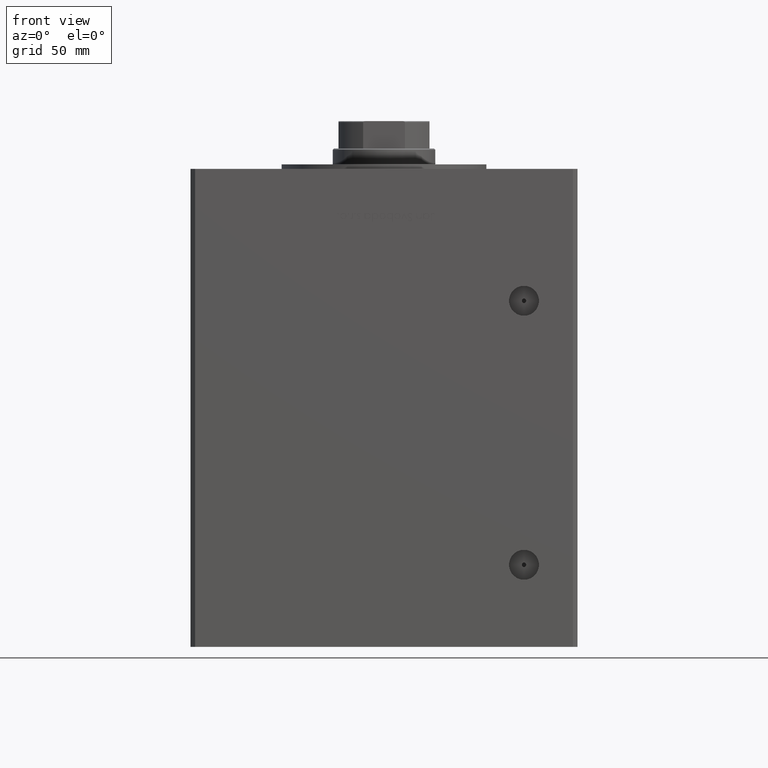
[diagram: clean part render]
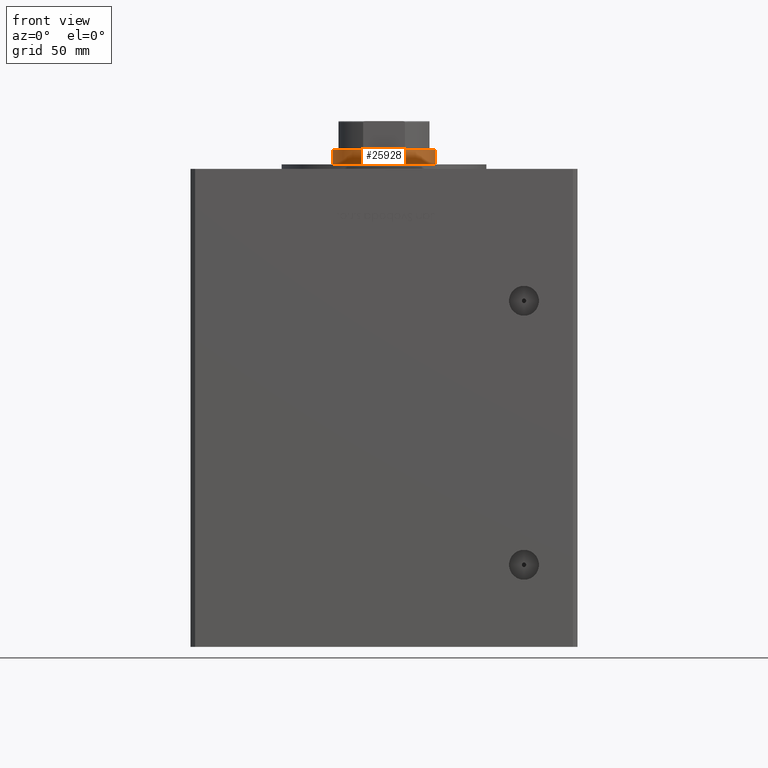
[diagram: same view with one face highlighted and labeled with its STEP entity id]
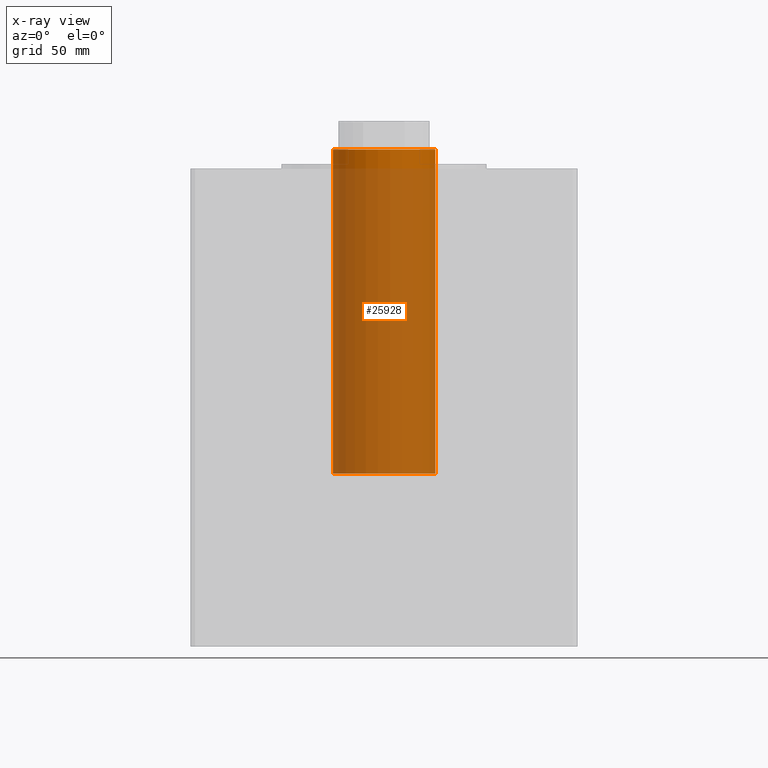
[diagram: x-ray of the same camera — body ghosted, the highlighted face saturated]
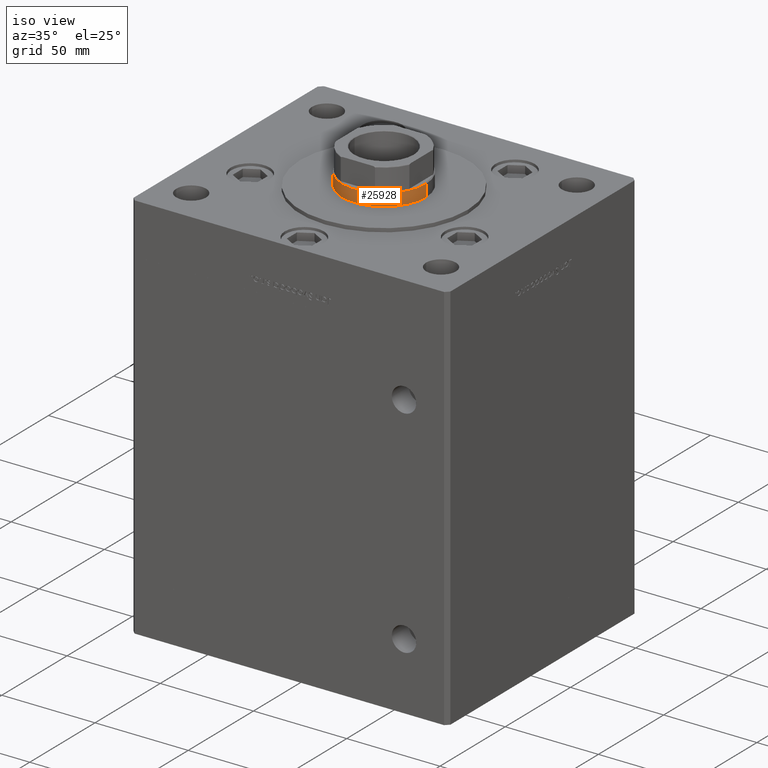
[diagram: same view with one face highlighted and labeled with its STEP entity id]
A machine part, front view. The second image highlights one B-rep face of the part: STEP entity #25928.
The next image is the same camera in x-ray: the body ghosted, the highlighted face saturated — about 94% of this face is hidden behind the body in this view.
A second angle (iso view) of the same face is appended — the face is thin or edge-on in the first view.
In plain terms, the highlighted cylindrical surface (partial cylindrical patch) has radius 22.5 mm, axis along (-0, -0, -1).
Its self-contained STEP definition (entity closure, byte-faithful):
#1449 = ORIENTED_EDGE ( 'NONE', *, *, #47962, .T. ) ;
#6168 = VERTEX_POINT ( 'NONE', #28973 ) ;
#7048 = DIRECTION ( 'NONE',  ( 0.000000000000000000, 0.000000000000000000, 1.000000000000000000 ) ) ;
#8999 = EDGE_CURVE ( 'NONE', #15835, #48283, #9573, .T. ) ;
#9244 = DIRECTION ( 'NONE',  ( 0.000000000000000000, 0.000000000000000000, -1.000000000000000000 ) ) ;
#9573 = LINE ( 'NONE', #12747, #42554 ) ;
#11990 = ORIENTED_EDGE ( 'NONE', *, *, #8999, .T. ) ;
#12747 = CARTESIAN_POINT ( 'NONE',  ( -22.50000000000000355, 0.000000000000000000, 181.0000000000000000 ) ) ;
#15094 = CYLINDRICAL_SURFACE ( 'NONE', #45408, 22.50000000000000355 ) ;
#15835 = VERTEX_POINT ( 'NONE', #51289 ) ;
#15867 = CARTESIAN_POINT ( 'NONE',  ( 0.000000000000000000, 0.000000000000000000, 181.0000000000000000 ) ) ;
#18623 = CARTESIAN_POINT ( 'NONE',  ( -22.50000000000000355, 0.000000000000000000, 38.00000000000000000 ) ) ;
#19052 = EDGE_CURVE ( 'NONE', #6168, #39472, #46972, .T. ) ;
#19304 = DIRECTION ( 'NONE',  ( -1.000000000000000000, 0.000000000000000000, 0.000000000000000000 ) ) ;
#19403 = CARTESIAN_POINT ( 'NONE',  ( 0.000000000000000000, 0.000000000000000000, 38.00000000000000000 ) ) ;
#19565 = CARTESIAN_POINT ( 'NONE',  ( 22.50000000000000355, 2.755455298081545172E-15, 181.0000000000000000 ) ) ;
#23516 = DIRECTION ( 'NONE',  ( -0.000000000000000000, -0.000000000000000000, -1.000000000000000000 ) ) ;
#25282 = EDGE_LOOP ( 'NONE', ( #44472, #1449, #11990, #32327 ) ) ;
#25323 = CARTESIAN_POINT ( 'NONE',  ( 0.000000000000000000, 0.000000000000000000, 180.5000000000000000 ) ) ;
#25849 = VECTOR ( 'NONE', #23516, 1000.000000000000000 ) ;
#25928 = ADVANCED_FACE ( 'NONE', ( #35659 ), #15094, .T. ) ;
#27056 = CARTESIAN_POINT ( 'NONE',  ( 22.50000000000000355, 2.755455298081545172E-15, 38.00000000000000000 ) ) ;
#28678 = AXIS2_PLACEMENT_3D ( 'NONE', #25323, #9244, #37706 ) ;
#28973 = CARTESIAN_POINT ( 'NONE',  ( 22.50000000000000355, 2.755455298081545172E-15, 180.5000000000000000 ) ) ;
#31010 = DIRECTION ( 'NONE',  ( 1.000000000000000000, 0.000000000000000000, 0.000000000000000000 ) ) ;
#32327 = ORIENTED_EDGE ( 'NONE', *, *, #45074, .T. ) ;
#35387 = DIRECTION ( 'NONE',  ( -0.000000000000000000, -0.000000000000000000, -1.000000000000000000 ) ) ;
#35659 = FACE_OUTER_BOUND ( 'NONE', #25282, .T. ) ;
#37047 = AXIS2_PLACEMENT_3D ( 'NONE', #19403, #7048, #31010 ) ;
#37706 = DIRECTION ( 'NONE',  ( 1.000000000000000000, 0.000000000000000000, 0.000000000000000000 ) ) ;
#39472 = VERTEX_POINT ( 'NONE', #27056 ) ;
#42554 = VECTOR ( 'NONE', #48842, 1000.000000000000000 ) ;
#44472 = ORIENTED_EDGE ( 'NONE', *, *, #19052, .F. ) ;
#44673 = CIRCLE ( 'NONE', #28678, 22.50000000000000355 ) ;
#45074 = EDGE_CURVE ( 'NONE', #48283, #39472, #45430, .T. ) ;
#45408 = AXIS2_PLACEMENT_3D ( 'NONE', #15867, #35387, #19304 ) ;
#45430 = CIRCLE ( 'NONE', #37047, 22.50000000000000355 ) ;
#46972 = LINE ( 'NONE', #19565, #25849 ) ;
#47962 = EDGE_CURVE ( 'NONE', #6168, #15835, #44673, .T. ) ;
#48283 = VERTEX_POINT ( 'NONE', #18623 ) ;
#48842 = DIRECTION ( 'NONE',  ( -0.000000000000000000, -0.000000000000000000, -1.000000000000000000 ) ) ;
#51289 = CARTESIAN_POINT ( 'NONE',  ( -22.50000000000000355, 0.000000000000000000, 180.5000000000000000 ) ) ;